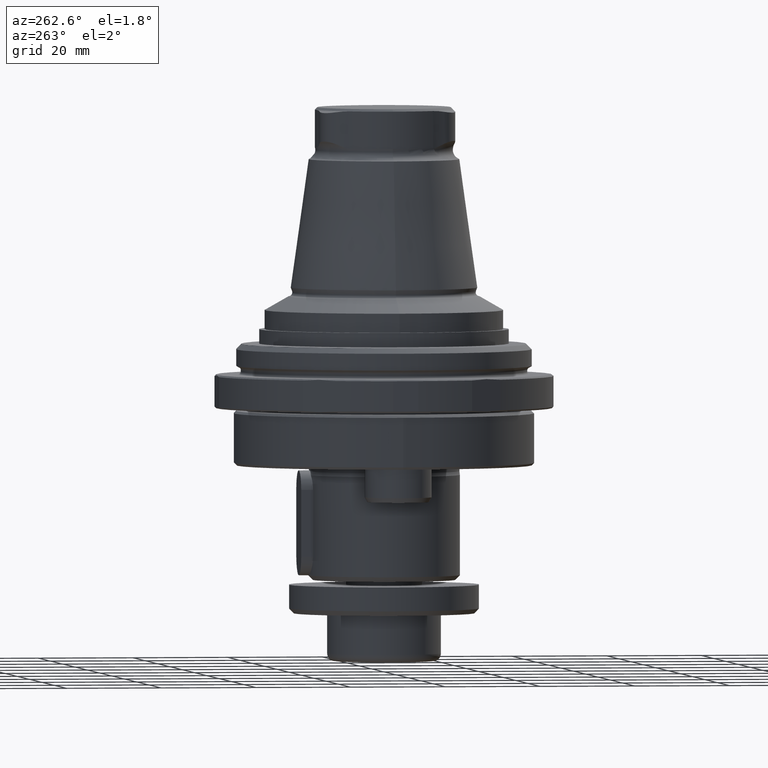
[diagram: clean part render]
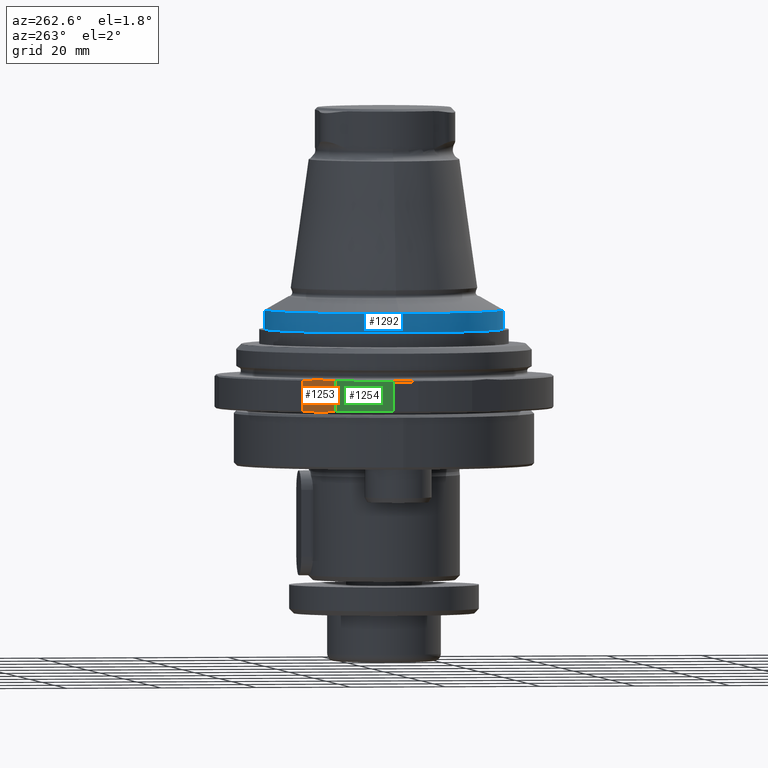
[diagram: same view with three faces highlighted in distinct colors, each labeled with its STEP entity id]
A machine part, auxiliary view with three faces highlighted in distinct colors.
Their STEP definitions:

[orange] entity #1253 — the highlighted planar face has unit normal (0.866, -0.5, -0).
#35=LINE('',#2123,#71);
#36=LINE('',#2130,#72);
#71=VECTOR('',#1681,1000.);
#72=VECTOR('',#1684,1000.);
#112=B_SPLINE_CURVE_WITH_KNOTS('',3,(#2062,#2063,#2064,#2065),
 .UNSPECIFIED.,.F.,.F.,(4,4),(0.00301971742095615,0.0105389064051034),
 .UNSPECIFIED.);
#119=B_SPLINE_CURVE_WITH_KNOTS('',3,(#2125,#2126,#2127,#2128),
 .UNSPECIFIED.,.F.,.F.,(4,4),(0.0142564267081391,0.0217467200872314),
 .UNSPECIFIED.);
#160=PLANE('',#1408);
#317=ORIENTED_EDGE('',*,*,#610,.F.);
#318=ORIENTED_EDGE('',*,*,#611,.F.);
#319=ORIENTED_EDGE('',*,*,#612,.F.);
#320=ORIENTED_EDGE('',*,*,#590,.F.);
#590=EDGE_CURVE('',#752,#753,#112,.T.);
#610=EDGE_CURVE('',#767,#752,#35,.F.);
#611=EDGE_CURVE('',#768,#767,#119,.T.);
#612=EDGE_CURVE('',#753,#768,#36,.T.);
#752=VERTEX_POINT('',#2061);
#753=VERTEX_POINT('',#2066);
#767=VERTEX_POINT('',#2122);
#768=VERTEX_POINT('',#2129);
#976=EDGE_LOOP('',(#317,#318,#319,#320));
#1112=FACE_BOUND('',#976,.T.);
#1253=ADVANCED_FACE('',(#1112),#160,.F.);
#1408=AXIS2_PLACEMENT_3D('',#2124,#1682,#1683);
#1681=DIRECTION('',(-1.04225259501902E-17,2.37516272644386E-69,-1.));
#1682=DIRECTION('',(0.866025403784439,-0.5,-9.0261722444673E-18));
#1683=DIRECTION('',(-1.04225259501902E-17,2.37516272644386E-69,-1.));
#1684=DIRECTION('',(-1.04225259501902E-17,2.37516272644386E-69,-1.));
#2061=CARTESIAN_POINT('',(-28.689207981368,20.9088341473601,-1.30000000000002));
#2062=CARTESIAN_POINT('',(-28.689207981368,20.9088341473601,-1.30000000000002));
#2063=CARTESIAN_POINT('',(-29.9379165030823,18.7460075439067,-1.03527537313982));
#2064=CARTESIAN_POINT('',(-31.1925081672455,16.5729910388236,-1.03294999360355));
#2065=CARTESIAN_POINT('',(-32.4521855258134,14.3911658526399,-1.30000000000002));
#2066=CARTESIAN_POINT('',(-32.4521855258134,14.3911658526399,-1.30000000000002));
#2122=CARTESIAN_POINT('',(-28.689207981368,20.9088341473601,-7.70000000000002));
#2123=CARTESIAN_POINT('',(-28.689207981368,20.9088341473601,-1.00000000000002));
#2124=CARTESIAN_POINT('',(-30.5706967535907,17.65,-4.50000000000001));
#2125=CARTESIAN_POINT('',(-32.4521855258134,14.3911658526399,-7.70000000000002));
#2126=CARTESIAN_POINT('',(-31.1925081672455,16.5729910388236,-7.96705000639648));
#2127=CARTESIAN_POINT('',(-29.9379165030823,18.7460075439067,-7.96472462686021));
#2128=CARTESIAN_POINT('',(-28.689207981368,20.9088341473601,-7.70000000000002));
#2129=CARTESIAN_POINT('',(-32.4521855258134,14.3911658526399,-7.70000000000002));
#2130=CARTESIAN_POINT('',(-32.4521855258134,14.3911658526399,-1.00000000000002));

[blue] entity #1292 — the highlighted cylindrical surface (bore or boss wall) has radius 25 mm, axis along (0, 0, -1).
#489=ORIENTED_EDGE('',*,*,#687,.T.);
#490=ORIENTED_EDGE('',*,*,#581,.F.);
#581=EDGE_CURVE('',#743,#743,#860,.T.);
#687=EDGE_CURVE('',#815,#815,#898,.T.);
#743=VERTEX_POINT('',#2031);
#815=VERTEX_POINT('',#2392);
#860=CIRCLE('',#1385,25.);
#898=CIRCLE('',#1471,25.);
#1024=EDGE_LOOP('',(#489));
#1025=EDGE_LOOP('',(#490));
#1160=FACE_BOUND('',#1024,.T.);
#1161=FACE_BOUND('',#1025,.T.);
#1209=CYLINDRICAL_SURFACE('',#1472,25.);
#1292=ADVANCED_FACE('',(#1160,#1161),#1209,.T.);
#1385=AXIS2_PLACEMENT_3D('',#2030,#1630,#1631);
#1471=AXIS2_PLACEMENT_3D('',#2391,#1830,#1831);
#1472=AXIS2_PLACEMENT_3D('',#2393,#1832,#1833);
#1630=DIRECTION('',(1.09102105407346E-16,0.,-1.));
#1631=DIRECTION('',(-1.,0.,-1.09102105407346E-16));
#1830=DIRECTION('',(1.09102105407346E-16,0.,-1.));
#1831=DIRECTION('',(-1.,0.,-1.09102105407346E-16));
#1832=DIRECTION('',(1.09102105407346E-16,0.,-1.));
#1833=DIRECTION('',(-1.,0.,-1.09102105407346E-16));
#2030=CARTESIAN_POINT('',(5.0731267217448E-15,0.,8.49999999999999));
#2031=CARTESIAN_POINT('',(-25.,0.,8.49999999999998));
#2391=CARTESIAN_POINT('',(4.63683947981222E-15,0.,12.498889300107));
#2392=CARTESIAN_POINT('',(-25.,0.,12.4988893001069));
#2393=CARTESIAN_POINT('',(0.,0.,54.998889300107));

[green] entity #1254 — the highlighted cylindrical surface (partial cylindrical patch) has radius 35.5 mm, axis along (-0, 0, -1).
#36=LINE('',#2130,#72);
#37=LINE('',#2132,#73);
#72=VECTOR('',#1684,1000.);
#73=VECTOR('',#1687,1000.);
#321=ORIENTED_EDGE('',*,*,#613,.F.);
#322=ORIENTED_EDGE('',*,*,#591,.T.);
#323=ORIENTED_EDGE('',*,*,#612,.T.);
#324=ORIENTED_EDGE('',*,*,#614,.F.);
#591=EDGE_CURVE('',#754,#753,#866,.T.);
#612=EDGE_CURVE('',#753,#768,#36,.T.);
#613=EDGE_CURVE('',#754,#769,#37,.T.);
#614=EDGE_CURVE('',#769,#768,#874,.T.);
#753=VERTEX_POINT('',#2066);
#754=VERTEX_POINT('',#2068);
#768=VERTEX_POINT('',#2129);
#769=VERTEX_POINT('',#2133);
#866=CIRCLE('',#1395,35.5);
#874=CIRCLE('',#1410,35.5);
#977=EDGE_LOOP('',(#321,#322,#323,#324));
#1113=FACE_BOUND('',#977,.T.);
#1192=CYLINDRICAL_SURFACE('',#1409,35.5);
#1254=ADVANCED_FACE('',(#1113),#1192,.T.);
#1395=AXIS2_PLACEMENT_3D('',#2067,#1650,#1651);
#1409=AXIS2_PLACEMENT_3D('',#2131,#1685,#1686);
#1410=AXIS2_PLACEMENT_3D('',#2134,#1688,#1689);
#1650=DIRECTION('',(-1.04225259501902E-17,2.37516272644386E-69,-1.));
#1651=DIRECTION('',(0.,-1.,0.));
#1684=DIRECTION('',(-1.04225259501902E-17,2.37516272644386E-69,-1.));
#1685=DIRECTION('',(-1.04225259501902E-17,2.37516272644386E-69,-1.));
#1686=DIRECTION('',(0.,-1.,0.));
#1687=DIRECTION('',(-1.04225259501902E-17,2.37516272644386E-69,-1.));
#1688=DIRECTION('',(-1.04225259501902E-17,2.37516272644386E-69,-1.));
#1689=DIRECTION('',(0.,-1.,0.));
#2066=CARTESIAN_POINT('',(-32.4521855258134,14.3911658526399,-1.30000000000002));
#2067=CARTESIAN_POINT('',(5.32955986150555E-15,9.27372792553649E-66,-1.30000000000002));
#2068=CARTESIAN_POINT('',(-35.4,2.6627053911389,-1.30000000000002));
#2129=CARTESIAN_POINT('',(-32.4521855258134,14.3911658526399,-7.70000000000002));
#2130=CARTESIAN_POINT('',(-32.4521855258134,14.3911658526399,-1.00000000000002));
#2131=CARTESIAN_POINT('',(5.3326866192906E-15,9.27301537671855E-66,-1.00000000000002));
#2132=CARTESIAN_POINT('',(-35.4,2.6627053911389,-1.00000000000002));
#2133=CARTESIAN_POINT('',(-35.4,2.6627053911389,-7.70000000000002));
#2134=CARTESIAN_POINT('',(5.26285569542433E-15,9.28892896698573E-66,-7.70000000000002));